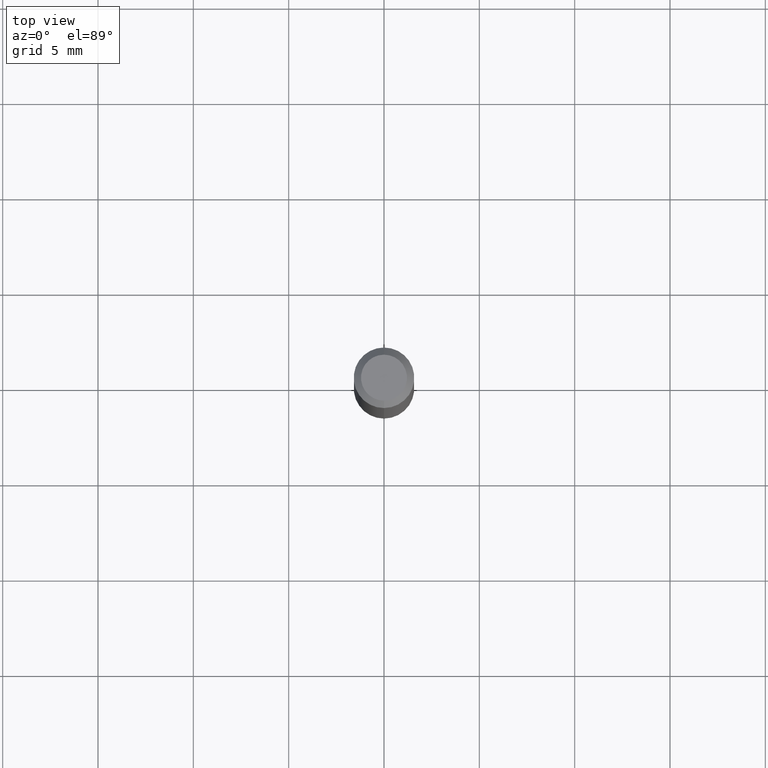
[diagram: clean part render]
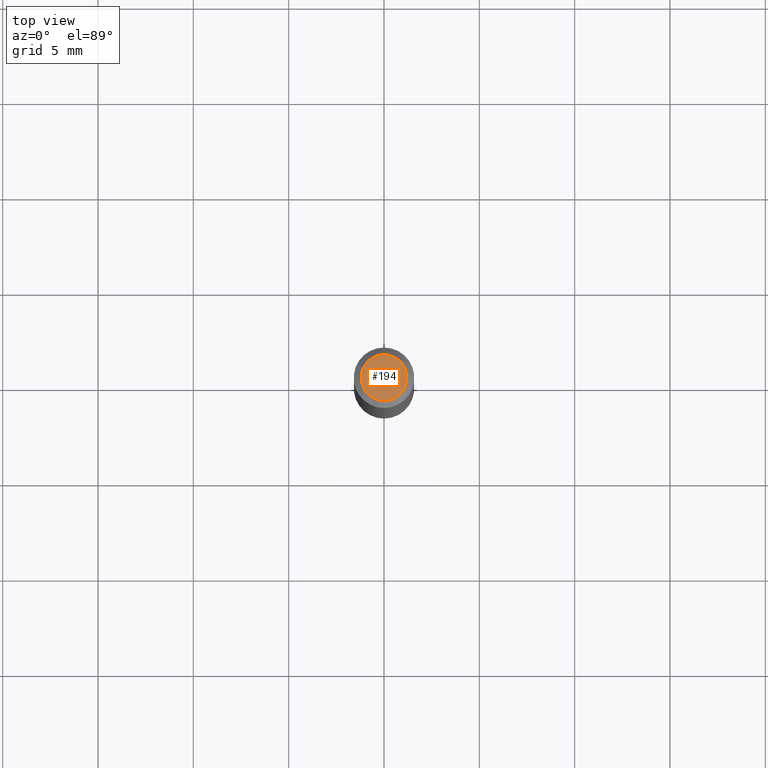
[diagram: same view with one face highlighted and labeled with its STEP entity id]
A machine part, top view. The second image highlights one B-rep face of the part: STEP entity #194.
In plain terms, the highlighted planar face has unit normal (0, -0, -1).
Its self-contained STEP definition (entity closure, byte-faithful):
#10 = CARTESIAN_POINT ( 'NONE',  ( -3.773273898774340269E-16, -0.04749999999999999362, 1.569833133875462794E-16 ) ) ;
#89 = CARTESIAN_POINT ( 'NONE',  ( 2.166986397993857003E-46, -3.093850029295840465E-32, -8.861184899667115584E-18 ) ) ;
#115 = ORIENTED_EDGE ( 'NONE', *, *, #231, .T. ) ;
#121 = DIRECTION ( 'NONE',  ( 6.982962677686265922E-15, 1.000000000000000000, -3.491463121836071755E-15 ) ) ;
#129 = ORIENTED_EDGE ( 'NONE', *, *, #407, .T. ) ;
#140 = CIRCLE ( 'NONE', #425, 0.04749999999999999362 ) ;
#141 = AXIS2_PLACEMENT_3D ( 'NONE', #89, #167, #274 ) ;
#159 = CARTESIAN_POINT ( 'NONE',  ( 3.316907271900976096E-16, 0.04749999999999999362, -1.702750907370469427E-16 ) ) ;
#167 = DIRECTION ( 'NONE',  ( -2.445481527053186331E-29, 3.491463121836071755E-15, 1.000000000000000000 ) ) ;
#175 = VERTEX_POINT ( 'NONE', #10 ) ;
#194 = ADVANCED_FACE ( 'NONE', ( #461 ), #493, .F. ) ;
#219 = CIRCLE ( 'NONE', #141, 0.04749999999999999362 ) ;
#220 = CARTESIAN_POINT ( 'NONE',  ( 3.840629472727447874E-16, 0.04749999999999999362, -1.747056831868805136E-16 ) ) ;
#231 = EDGE_CURVE ( 'NONE', #399, #175, #140, .T. ) ;
#239 = EDGE_LOOP ( 'NONE', ( #115, #129 ) ) ;
#271 = CARTESIAN_POINT ( 'NONE',  ( 2.166986397993857003E-46, -3.093850029295840465E-32, -8.861184899667115584E-18 ) ) ;
#274 = DIRECTION ( 'NONE',  ( -6.982962677686266711E-15, -1.000000000000000000, 3.491463121836072149E-15 ) ) ;
#308 = DIRECTION ( 'NONE',  ( -2.445481527053186331E-29, 3.491463121836071755E-15, 1.000000000000000000 ) ) ;
#314 = DIRECTION ( 'NONE',  ( -6.982962677686266711E-15, -1.000000000000000000, 3.491463121836072149E-15 ) ) ;
#399 = VERTEX_POINT ( 'NONE', #220 ) ;
#407 = EDGE_CURVE ( 'NONE', #175, #399, #219, .T. ) ;
#417 = AXIS2_PLACEMENT_3D ( 'NONE', #159, #430, #121 ) ;
#425 = AXIS2_PLACEMENT_3D ( 'NONE', #271, #308, #314 ) ;
#430 = DIRECTION ( 'NONE',  ( 2.445481527053185770E-29, -3.491463121836071755E-15, -1.000000000000000000 ) ) ;
#461 = FACE_OUTER_BOUND ( 'NONE', #239, .T. ) ;
#493 = PLANE ( 'NONE',  #417 ) ;